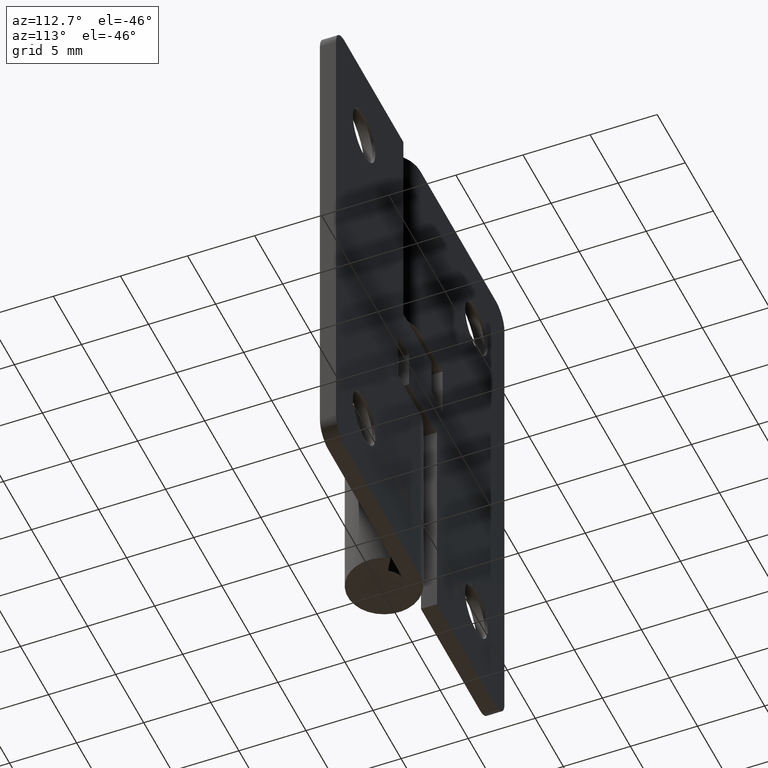
[diagram: clean part render]
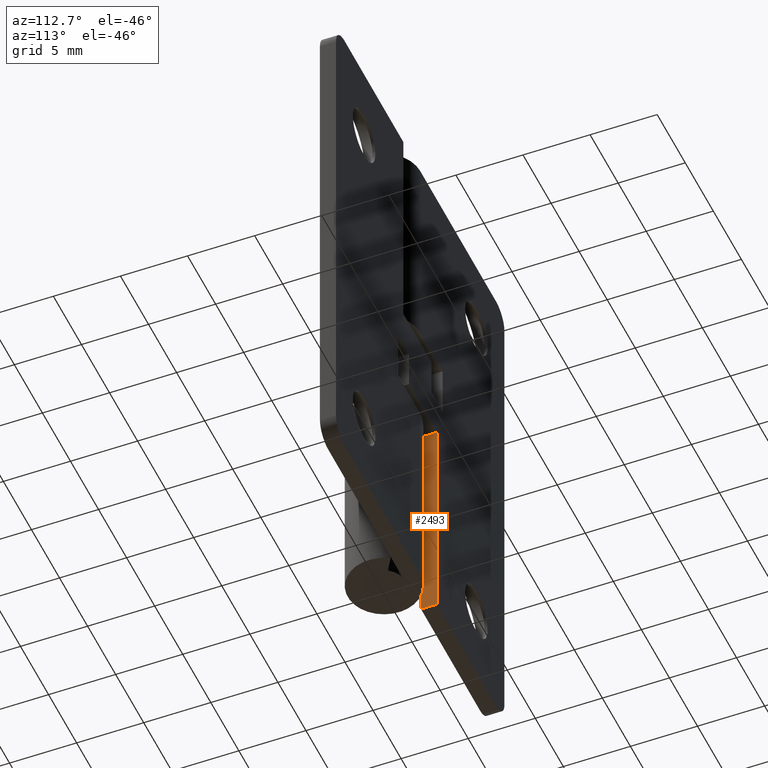
[diagram: same view with one face highlighted and labeled with its STEP entity id]
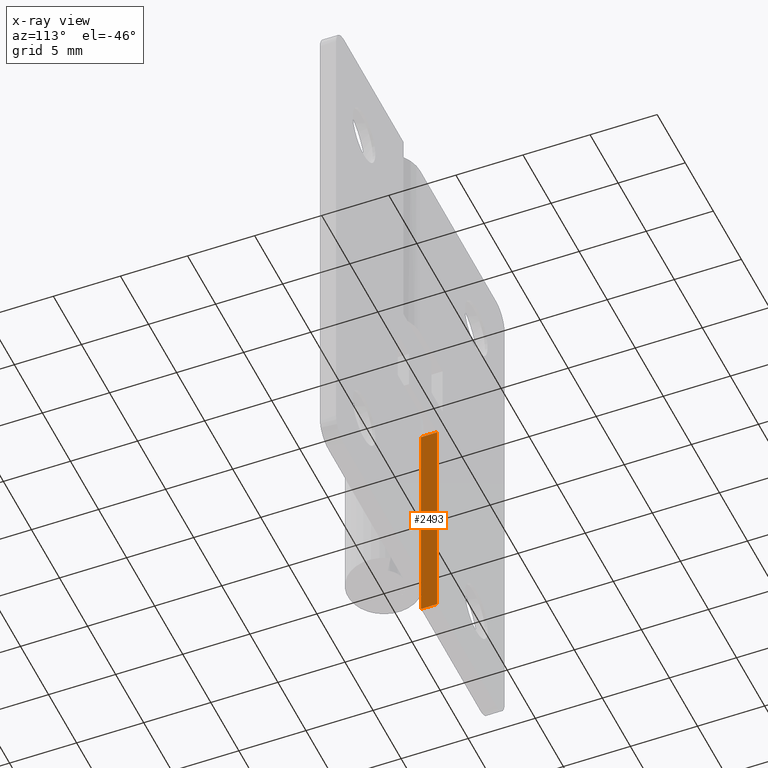
[diagram: x-ray of the same camera — body ghosted, the highlighted face saturated]
A machine part, auxiliary view. The second image highlights one B-rep face of the part: STEP entity #2493.
The next image is the same camera in x-ray: the body ghosted, the highlighted face saturated — about 0% of this face is hidden behind the body in this view.
In plain terms, the highlighted face is a freeform B-spline surface patch.
Its self-contained STEP definition (entity closure, byte-faithful):
#2443=CARTESIAN_POINT('',(-3.0,2.700001000000000,17.0));
#2444=VERTEX_POINT('',#2443);
#2451=CARTESIAN_POINT('',(-3.0,1.499999999999946,17.0));
#2452=VERTEX_POINT('',#2451);
#2458=CARTESIAN_POINT('',(-3.0,1.499999999999946,17.0));
#2459=CARTESIAN_POINT('',(-3.0,2.700001000000000,17.0));
#2460=QUASI_UNIFORM_CURVE('',1,(#2458,#2459),.UNSPECIFIED.,.F.,.U.);
#2461=EDGE_CURVE('',#2452,#2444,#2460,.T.);
#2466=CARTESIAN_POINT('',(-3.0,1.440059952375778,17.849149967050700));
#2467=CARTESIAN_POINT('',(-3.0,1.440059952375778,-0.849150423026233));
#2468=CARTESIAN_POINT('',(-3.0,2.759941079810703,17.849149967050700));
#2469=CARTESIAN_POINT('',(-3.0,2.759941079810703,-0.849150423026233));
#2470=B_SPLINE_SURFACE_WITH_KNOTS('',1,1,((#2466,#2468),(#2467,#2469)),.UNSPECIFIED.,.F.,.F.,.U.,(2,2),(2,2),(0.0,18.698300390076941),(0.041708334948495,0.958291687403247),.UNSPECIFIED.);
#2471=ORIENTED_EDGE('',*,*,#2461,.F.);
#2472=CARTESIAN_POINT('',(-3.0,1.500000000000000,0.0));
#2473=VERTEX_POINT('',#2472);
#2474=CARTESIAN_POINT('',(-3.0,1.500000000000000,0.0));
#2475=CARTESIAN_POINT('',(-3.0,1.499999999999946,17.0));
#2476=QUASI_UNIFORM_CURVE('',1,(#2474,#2475),.UNSPECIFIED.,.F.,.U.);
#2477=EDGE_CURVE('',#2473,#2452,#2476,.T.);
#2478=ORIENTED_EDGE('',*,*,#2477,.F.);
#2479=CARTESIAN_POINT('',(-3.0,2.700001000000000,0.0));
#2480=VERTEX_POINT('',#2479);
#2481=CARTESIAN_POINT('',(-3.0,1.500000000000000,0.0));
#2482=CARTESIAN_POINT('',(-3.0,2.700001000000000,0.0));
#2483=QUASI_UNIFORM_CURVE('',1,(#2481,#2482),.UNSPECIFIED.,.F.,.U.);
#2484=EDGE_CURVE('',#2473,#2480,#2483,.T.);
#2485=ORIENTED_EDGE('',*,*,#2484,.T.);
#2486=CARTESIAN_POINT('',(-3.0,2.700001000000000,17.0));
#2487=CARTESIAN_POINT('',(-3.0,2.700001000000000,0.0));
#2488=QUASI_UNIFORM_CURVE('',1,(#2486,#2487),.UNSPECIFIED.,.F.,.U.);
#2489=EDGE_CURVE('',#2444,#2480,#2488,.T.);
#2490=ORIENTED_EDGE('',*,*,#2489,.F.);
#2491=EDGE_LOOP('',(#2471,#2478,#2485,#2490));
#2492=FACE_OUTER_BOUND('',#2491,.T.);
#2493=ADVANCED_FACE('',(#2492),#2470,.T.);